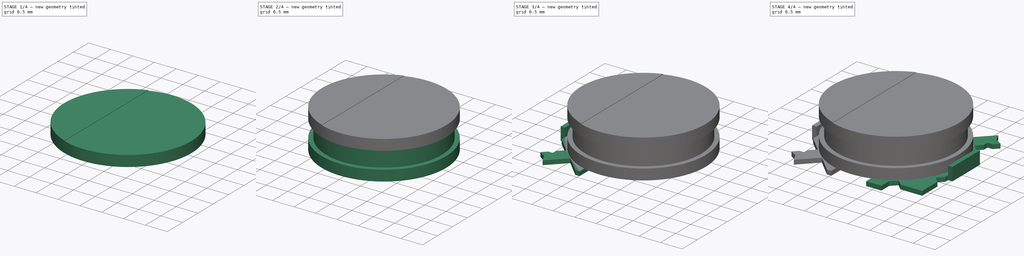
[diagram: build sequence overview — one tinted view per stage of 4, left to right]
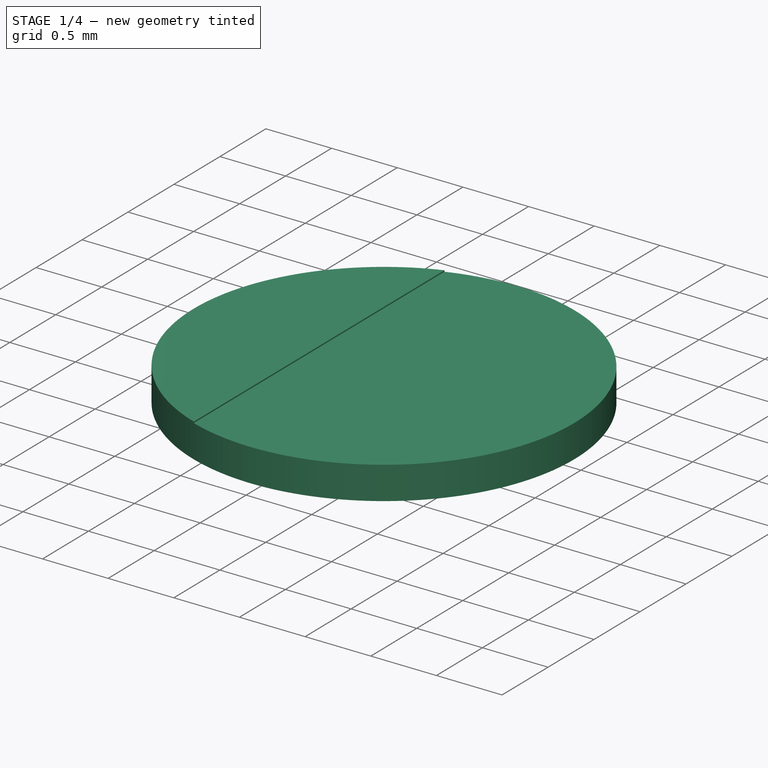
[diagram: stage 1 of 4 — iso view after this stage's code; geometry added in this stage tinted green]
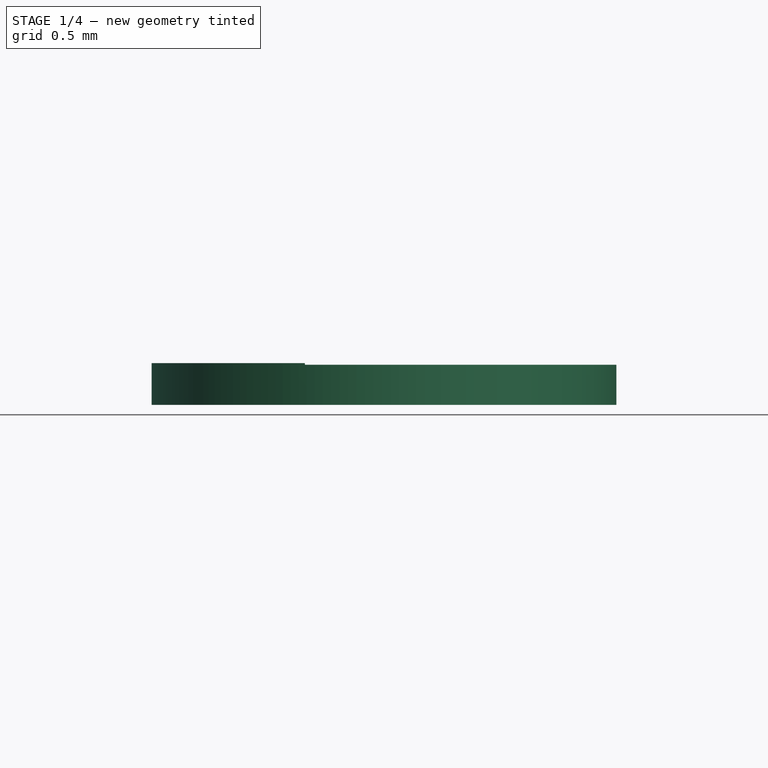
[diagram: stage 1 of 4 — front view after this stage's code; geometry added in this stage tinted green]
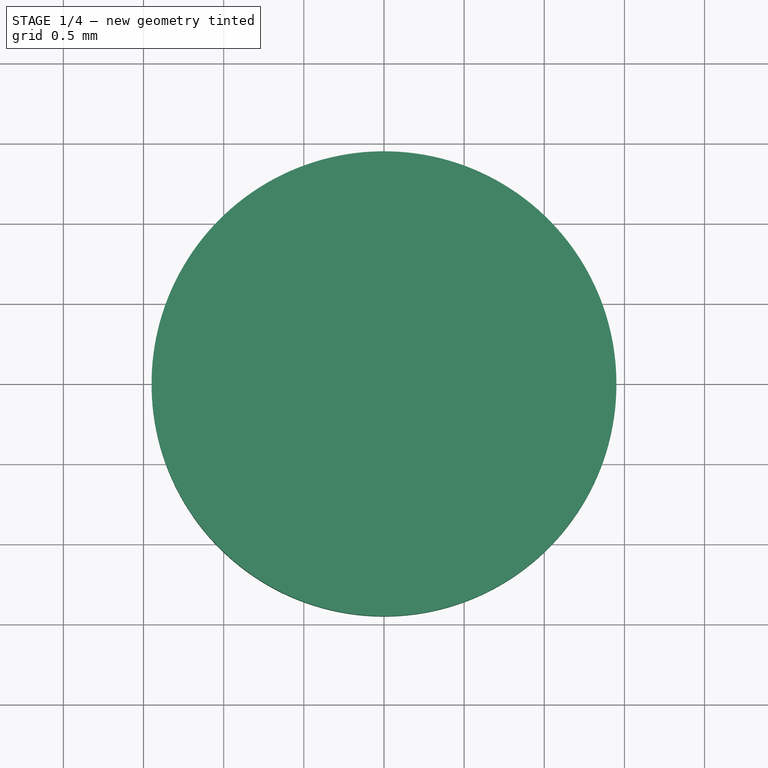
[diagram: stage 1 of 4 — top view after this stage's code; geometry added in this stage tinted green]
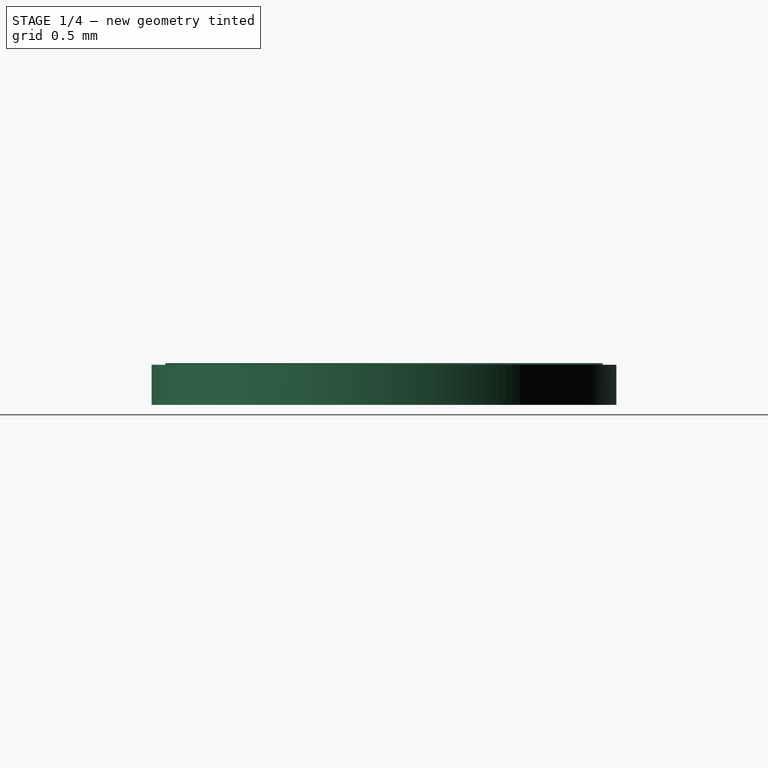
[diagram: stage 1 of 4 — right view after this stage's code; geometry added in this stage tinted green]
FCSTD DOCUMENT  (FreeCAD 0.16R6114 (Git))
Label: Ind_ell_vfg
License: All rights reserved
LicenseURL: http://en.wikipedia.org/wiki/All_rights_reserved
objects: Sketcher::SketchObject×7, PartDesign::Pad×7, Part::Mirroring×1, Part::MultiFuse×1
note: 23 computed .brp shape members not serialized (recipe doc carries the construction recipe); baked Part::Feature solids carry a one-line shape summary decoded from their .brp

FEATURE [Sketcher::SketchObject] Sketch005
  Placement = pos=(0,0,0.75) rot=(0,0,1;0rad)
  sketch-geometry (1):
    g0: Circle CenterX=0 CenterY=0 CenterZ=0 NormalX=0 NormalY=0 NormalZ=1 Radius=1.45
  constraints (2):
    c: Coincident(g0,g-1)
    c: Radius(g0) = 1.45
FEATURE [PartDesign::Pad] Pad005
  Length = 0.25
  Length2 = 100
  Placement = pos=(0,0,0.75) rot=(0,0,1;0rad)
  Sketch = -> Sketch005
  Type = 0
FEATURE [Sketcher::SketchObject] Sketch006
  Placement = pos=(0,0,1.01) rot=(0,0,1;0rad)
  sketch-geometry (2):
    g0: ArcOfCircle CenterX=0 CenterY=0 CenterZ=0 NormalX=0 NormalY=0 NormalZ=1 Radius=1.45 StartAngle=1.91827 EndAngle=4.36491
    g1: LineSegment StartX=-0.49376 StartY=1.36334 StartZ=0 EndX=-0.49376 EndY=-1.36334 EndZ=0
  constraints (6):
    c: Coincident(g0,g-1)
    c: Radius(g0) = 1.45
    c: Vertical(g1)
    c: Coincident(g1,g0)
    c: Coincident(g1,g0)
    c: DistanceX(g-1,g0) = -0.49376
FEATURE [PartDesign::Pad] Pad006
  Length = 0.01
  Length2 = 100
  Placement = pos=(0,0,1.01) rot=(0,0,1;0rad)
  Reversed = true
  Sketch = -> Sketch006
  Type = 0
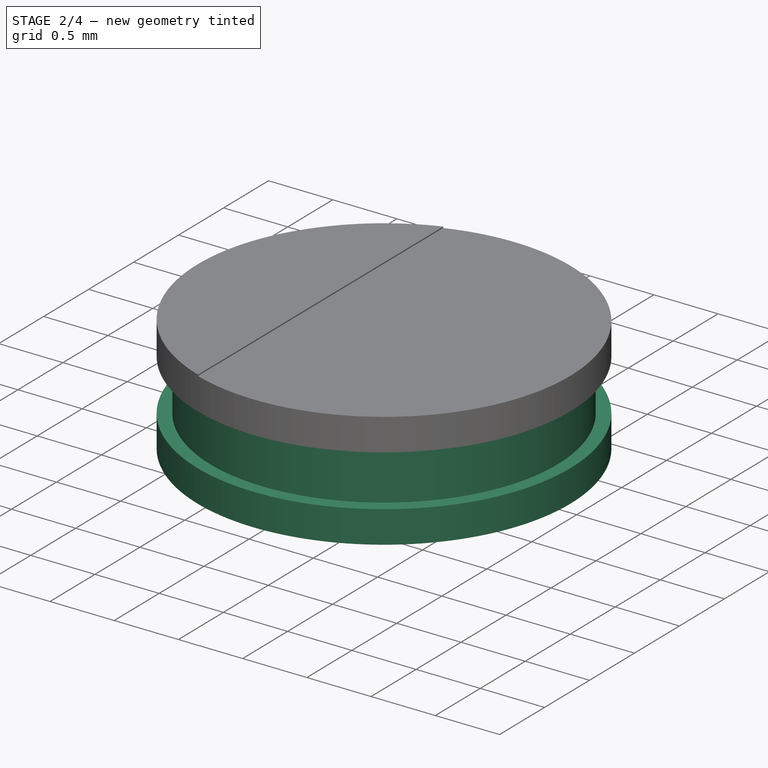
[diagram: stage 2 of 4 — iso view after this stage's code; geometry added in this stage tinted green]
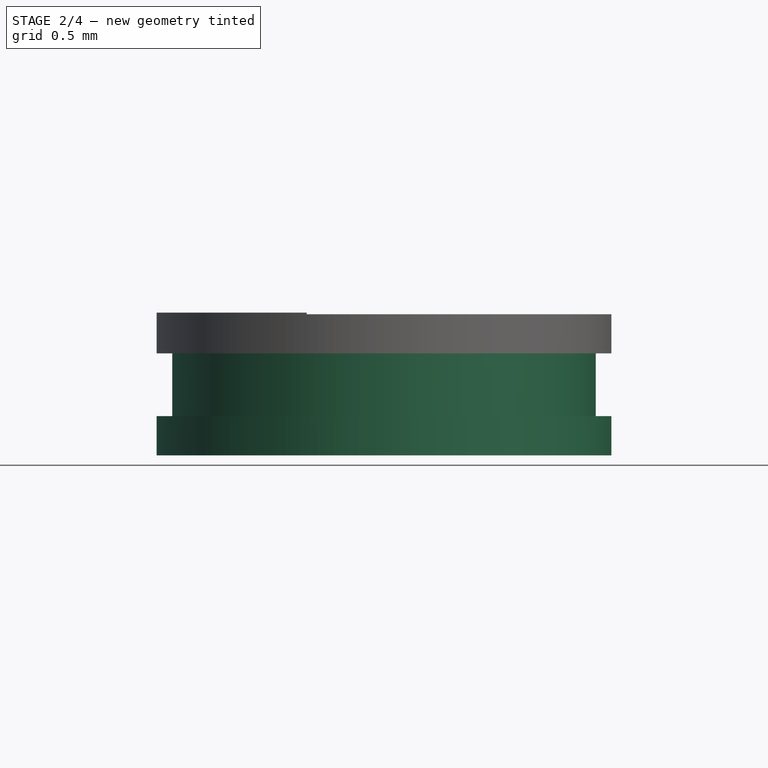
[diagram: stage 2 of 4 — front view after this stage's code; geometry added in this stage tinted green]
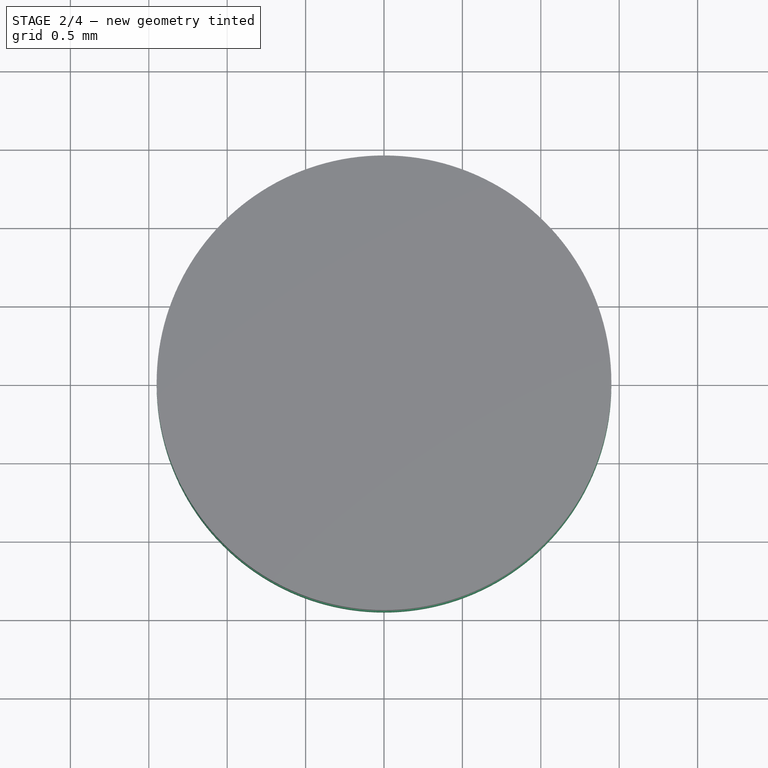
[diagram: stage 2 of 4 — top view after this stage's code; geometry added in this stage tinted green]
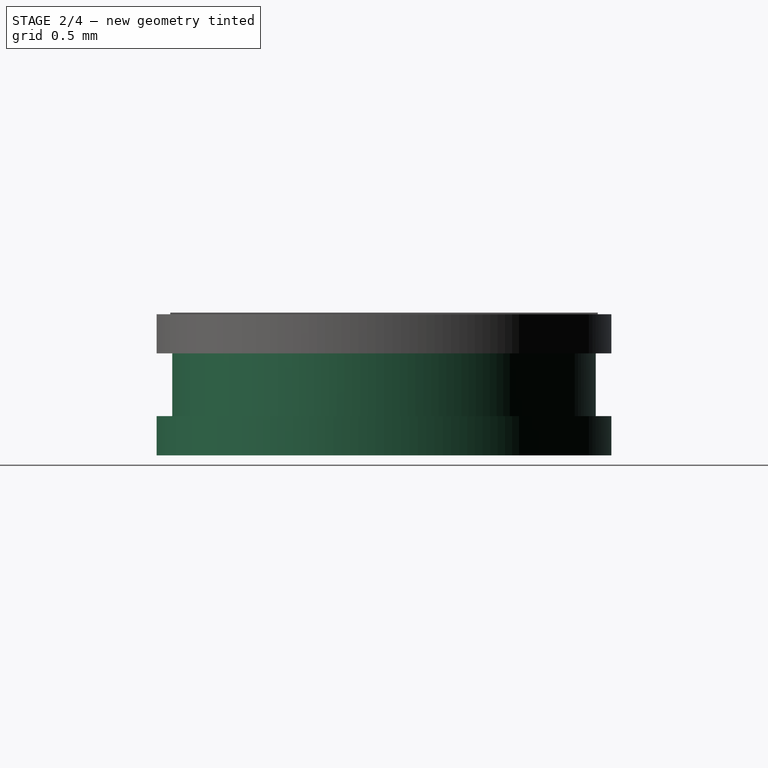
[diagram: stage 2 of 4 — right view after this stage's code; geometry added in this stage tinted green]
FEATURE [Sketcher::SketchObject] Sketch003
  Placement = pos=(0,0,0.1) rot=(0,0,1;0rad)
  sketch-geometry (1):
    g0: Circle CenterX=0 CenterY=0 CenterZ=0 NormalX=0 NormalY=0 NormalZ=1 Radius=1.45
  constraints (2):
    c: Coincident(g0,g-1)
    c: Radius(g0) = 1.45
FEATURE [PartDesign::Pad] Pad003
  Length = 0.25
  Length2 = 100
  Placement = pos=(0,0,0.1) rot=(0,0,1;0rad)
  Sketch = -> Sketch003
  Type = 0
FEATURE [Sketcher::SketchObject] Sketch004
  Placement = pos=(0,0,0.35) rot=(0,0,1;0rad)
  sketch-geometry (1):
    g0: Circle CenterX=0 CenterY=0 CenterZ=0 NormalX=0 NormalY=0 NormalZ=1 Radius=1.35
  constraints (2):
    c: Coincident(g0,g-1)
    c: Radius(g0) = 1.35
FEATURE [PartDesign::Pad] Pad004
  Length = 0.4
  Length2 = 100
  Placement = pos=(0,0,0.35) rot=(0,0,1;0rad)
  Sketch = -> Sketch004
  Type = 0
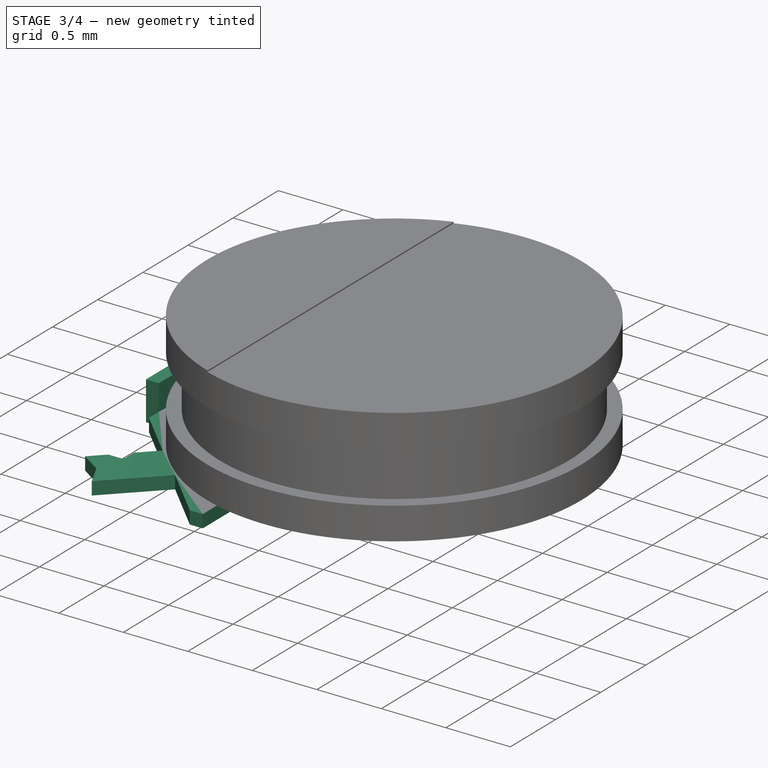
[diagram: stage 3 of 4 — iso view after this stage's code; geometry added in this stage tinted green]
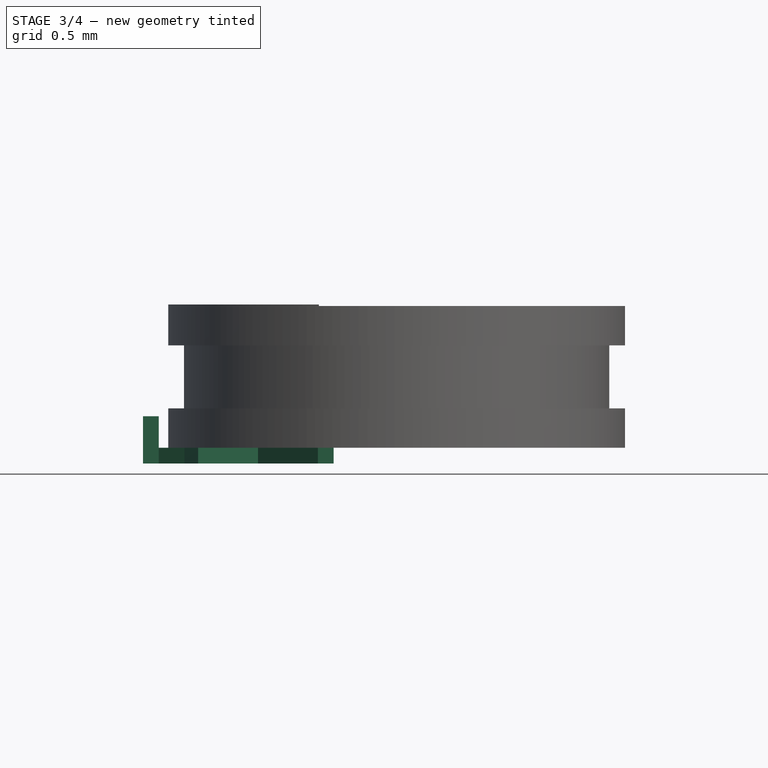
[diagram: stage 3 of 4 — front view after this stage's code; geometry added in this stage tinted green]
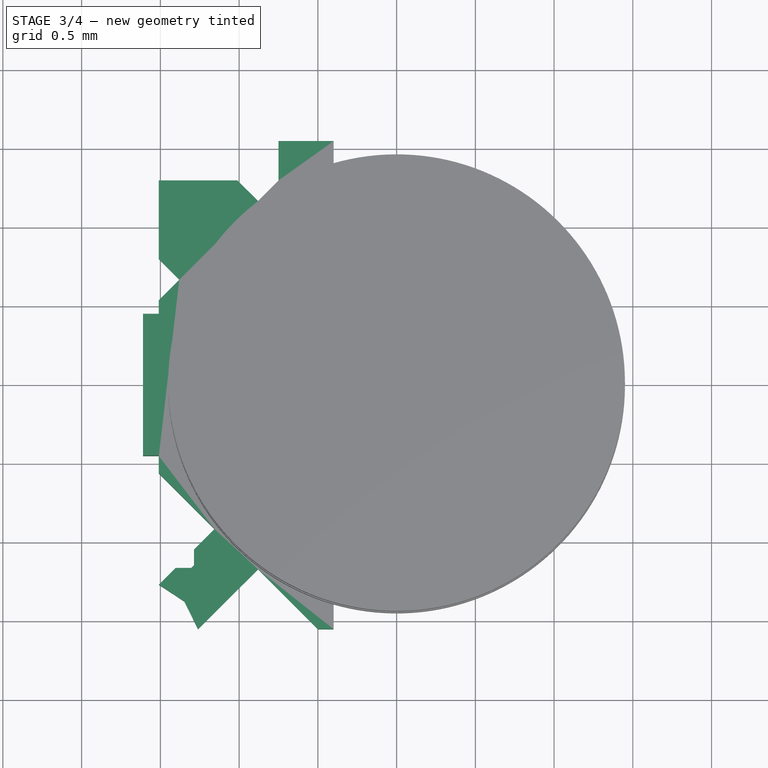
[diagram: stage 3 of 4 — top view after this stage's code; geometry added in this stage tinted green]
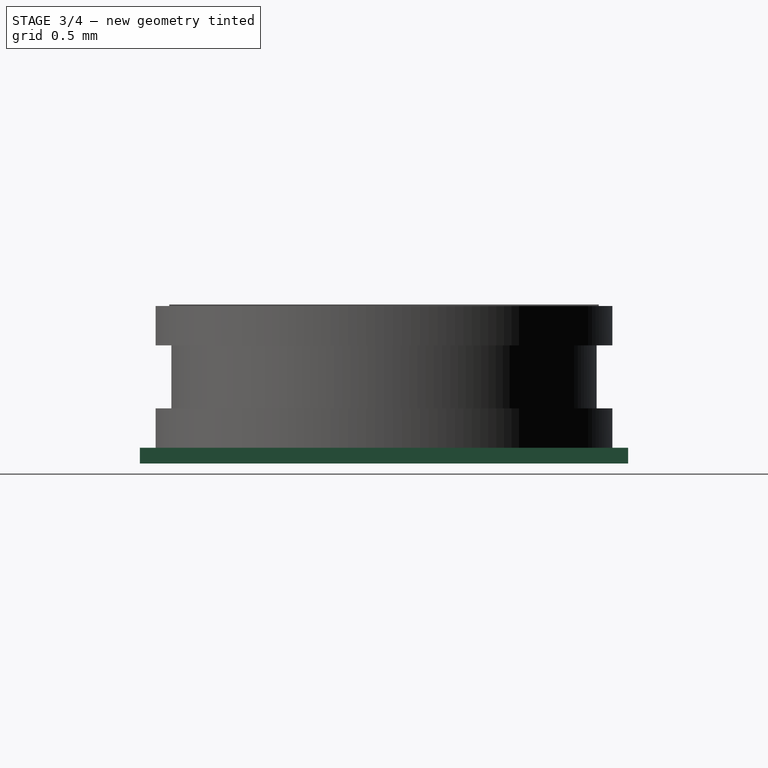
[diagram: stage 3 of 4 — right view after this stage's code; geometry added in this stage tinted green]
FEATURE [Sketcher::SketchObject] Sketch
  sketch-geometry (25):
    g0: LineSegment StartX=0.4 StartY=-1.55 StartZ=0 EndX=0.75 EndY=-1.55 EndZ=0
    g1: LineSegment StartX=0.75 StartY=-1.55 StartZ=0 EndX=0.75 EndY=-1.3 EndZ=0
    g2: LineSegment StartX=0.75 StartY=-1.3 StartZ=0 EndX=0.88 EndY=-1.17 EndZ=0
    g3: LineSegment StartX=0.88 StartY=-1.17 StartZ=0 EndX=1.01 EndY=-1.3 EndZ=0
    g4: LineSegment StartX=1.01 StartY=-1.3 StartZ=0 EndX=1.51 EndY=-1.3 EndZ=0
    g5: LineSegment StartX=1.51 StartY=-1.3 StartZ=0 EndX=1.51 EndY=-0.8 EndZ=0
    g6: LineSegment StartX=1.51 StartY=-0.8 StartZ=0 EndX=1.38 EndY=-0.67 EndZ=0
    g7: LineSegment StartX=1.38 StartY=-0.67 StartZ=0 EndX=1.51 EndY=-0.54 EndZ=0
    g8: LineSegment StartX=1.51 StartY=-0.54 StartZ=0 EndX=1.51 EndY=-0.45 EndZ=0
    g9: LineSegment StartX=1.51 StartY=-0.45 StartZ=0 EndX=1.61 EndY=-0.45 EndZ=0
    g10: LineSegment StartX=1.61 StartY=-0.45 StartZ=0 EndX=1.61 EndY=0.45 EndZ=0
    g11: LineSegment StartX=1.61 StartY=0.45 StartZ=0 EndX=1.51 EndY=0.45 EndZ=0
    g12: LineSegment StartX=1.51 StartY=0.45 StartZ=0 EndX=1.51 EndY=0.56 EndZ=0
    g13: LineSegment StartX=1.51 StartY=0.56 StartZ=0 EndX=1.15645 EndY=0.913553 EndZ=0
    g14: LineSegment StartX=1.15645 StartY=0.913553 StartZ=0 EndX=1.28626 EndY=1.04336 EndZ=0
    g15: LineSegment StartX=1.28626 StartY=1.04336 StartZ=0 EndX=1.28626 EndY=1.14336 EndZ=0
    g16: LineSegment StartX=1.28626 StartY=1.14336 StartZ=0 EndX=1.30393 EndY=1.16104 EndZ=0
    g17: LineSegment StartX=1.30393 StartY=1.16104 StartZ=0 EndX=1.40393 EndY=1.16104 EndZ=0
    g18: LineSegment StartX=1.40393 StartY=1.16104 StartZ=0 EndX=1.51 EndY=1.26711 EndZ=0
    g19: LineSegment StartX=1.51 StartY=1.26711 StartZ=0 EndX=1.3471 EndY=1.37506 EndZ=0
    g20: LineSegment StartX=1.3471 StartY=1.37506 StartZ=0 EndX=1.26 EndY=1.55 EndZ=0
    g21: LineSegment StartX=1.26 StartY=1.55 StartZ=0 EndX=0.88 EndY=1.17 EndZ=0
    g22: LineSegment StartX=0.88 StartY=1.17 StartZ=0 EndX=0.5 EndY=1.55 EndZ=0
    g23: LineSegment StartX=0.5 StartY=1.55 StartZ=0 EndX=0.4 EndY=1.55 EndZ=0
    g24: LineSegment StartX=0.4 StartY=1.55 StartZ=0 EndX=0.4 EndY=-1.55 EndZ=0
  constraints (75):
    c: Horizontal(g0)
    c: Coincident(g0,g1)
    c: Vertical(g1)
    c: Coincident(g1,g2)
    c: Coincident(g2,g3)
    c: Coincident(g3,g4)
    c: Horizontal(g4)
    c: Coincident(g4,g5)
    c: Coincident(g5,g6)
    c: Coincident(g6,g7)
    c: Coincident(g7,g8)
    c: Vertical(g8)
    c: Coincident(g8,g9)
    c: Horizontal(g9)
    c: Coincident(g9,g10)
    c: Vertical(g10)
    c: Coincident(g10,g11)
    c: Horizontal(g11)
    c: Coincident(g11,g12)
    c: Vertical(g12)
    c: Coincident(g12,g13)
    c: Coincident(g13,g14)
    c: Coincident(g14,g15)
    c: Vertical(g15)
    c: Coincident(g15,g16)
    c: Coincident(g16,g17)
    c: Horizontal(g17)
    c: Coincident(g17,g18)
    c: Coincident(g18,g19)
    c: Coincident(g19,g20)
    c: Coincident(g20,g21)
    c: Coincident(g21,g22)
    c: Coincident(g22,g23)
    c: Horizontal(g23)
    c: Angle(g2,g3) = 1.5708
    c: Angle(g6,g7) = 1.5708
    c: Angle(g5) = 1.5708
    c: Angle(g21,g22) = 1.5708
    c: DistanceX(g0) = 0.35
    c: DistanceY(g1) = 0.25
    c: DistanceX(g4) = 0.5
    c: DistanceY(g5) = 0.5
    c: DistanceX(g9) = 0.1
    c: DistanceY(g10) = 0.9
    c: DistanceX(g11) = -0.1
    c: DistanceY(g12) = 0.11
    c: Angle(g13,g14) = 1.5708
    c: Angle(g13,g18) = 1.5708
    c: DistanceY(g15) = 0.1
    c: DistanceX(g17) = 0.1
    c: DistanceX(g23) = -0.1
    c: DistanceY(g22,g20) = 0
    c: DistanceY(g1,g3) = 0
    c: DistanceX(g7,g5) = 0
    c: DistanceX(g12,g18) = 0
    c: DistanceY(g2,g1) = -0.13
    c: DistanceX(g6,g5) = 0.13
    c: DistanceY(g22,g21) = -0.38
    c: Angle(g13) = 2.35619
    c: Angle(g22) = 2.35619
    c: Angle(g2) = 0.785398
    c: Angle(g6) = 2.35619
    c: DistanceX(g-1,g23) = 0.4
    c: Angle(g19,g20) = 2.61799
    c: Equal(g20,g19)
    c: Angle(g16) = 0.785398
    c: Distance(g18) = 0.15
    c: Distance(g16) = 0.025
    c: Distance(g13) = 0.5
    c: Vertical(g24)
    c: Coincident(g24,g23)
    c: Coincident(g24,g0)
    c: Symmetric(g23,g0,g-1)
    c: DistanceY(g-1,g10) = 0.45
    c: DistanceY(g8) = 0.09
FEATURE [PartDesign::Pad] Pad
  Length = 0.1
  Length2 = 100
  Sketch = -> Sketch
  Type = 0
FEATURE [Part::Mirroring] Part__Mirroring  label="Pad (Mirror #1)"
  Base = (0,0,0)
  Normal = (1,0,0)
  Placement = pos=(0,0,0.1) rot=(1,0,0;3.14159rad)
  Source = -> Pad
FEATURE [Sketcher::SketchObject] Sketch002
  ExternalGeometry = -> [Part__Mirroring]
  Placement = pos=(0,0,0.1) rot=(0,0,1;0rad)
  Support = -> Part__Mirroring [Face26]
  sketch-geometry (4):
    g0: LineSegment StartX=-1.61 StartY=0.45 StartZ=0 EndX=-1.51 EndY=0.45 EndZ=0
    g1: LineSegment StartX=-1.51 StartY=0.45 StartZ=0 EndX=-1.51 EndY=-0.45 EndZ=0
    g2: LineSegment StartX=-1.51 StartY=-0.45 StartZ=0 EndX=-1.61 EndY=-0.45 EndZ=0
    g3: LineSegment StartX=-1.61 StartY=-0.45 StartZ=0 EndX=-1.61 EndY=0.45 EndZ=0
  constraints (11):
    c: Coincident(g0,g1)
    c: Coincident(g1,g2)
    c: Coincident(g2,g3)
    c: Coincident(g3,g0)
    c: Horizontal(g0)
    c: Horizontal(g2)
    c: Vertical(g1)
    c: Vertical(g3)
    c: Equal(g2,g-6)
    c: Equal(g3,g-5)
    c: Coincident(g0,g-4)
FEATURE [PartDesign::Pad] Pad002
  Length = 0.2
  Length2 = 100
  Placement = pos=(0,0,0.1) rot=(1,0,0;3.14159rad)
  Sketch = -> Sketch002
  Type = 0
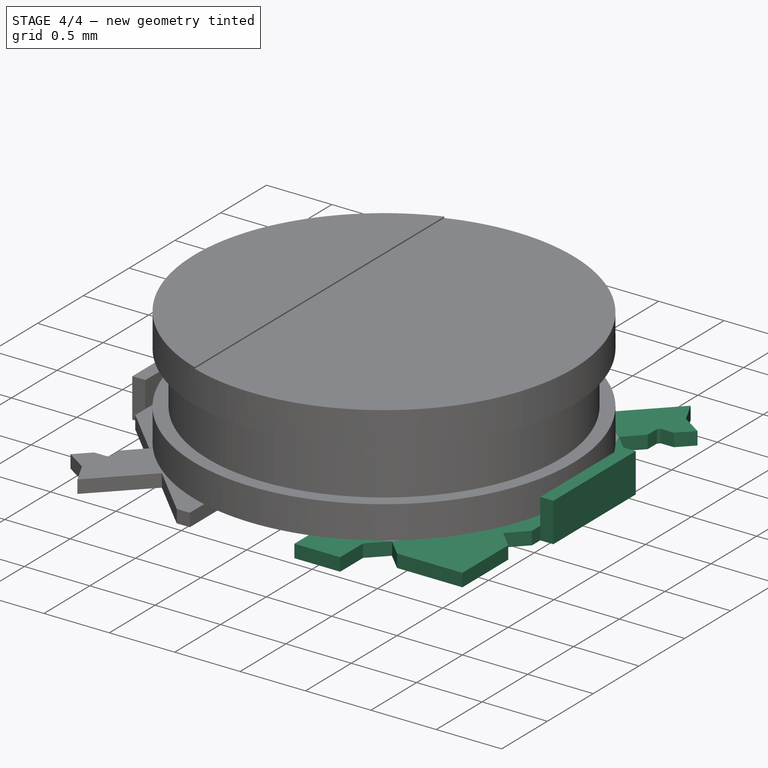
[diagram: stage 4 of 4 — iso view after this stage's code; geometry added in this stage tinted green]
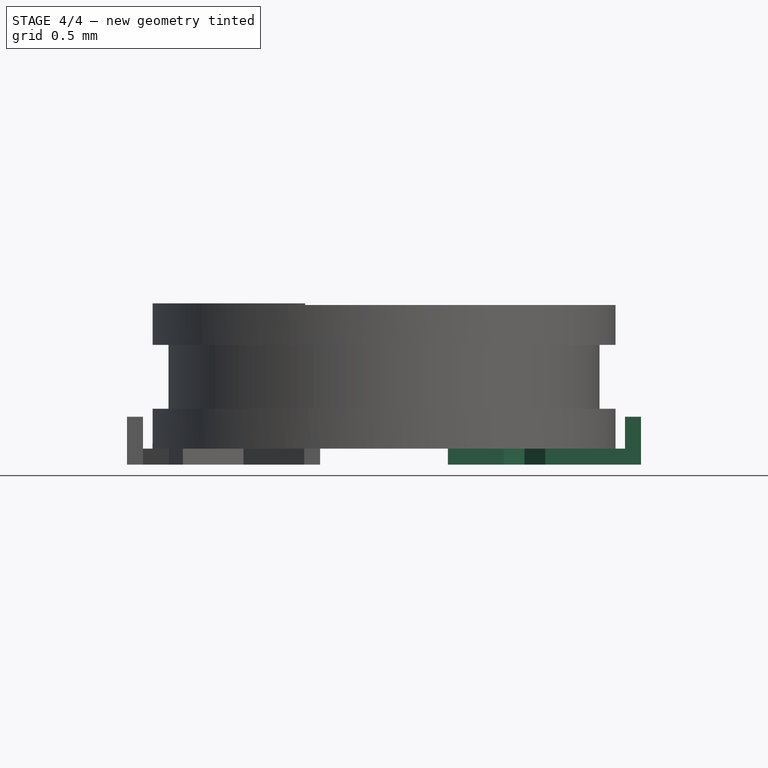
[diagram: stage 4 of 4 — front view after this stage's code; geometry added in this stage tinted green]
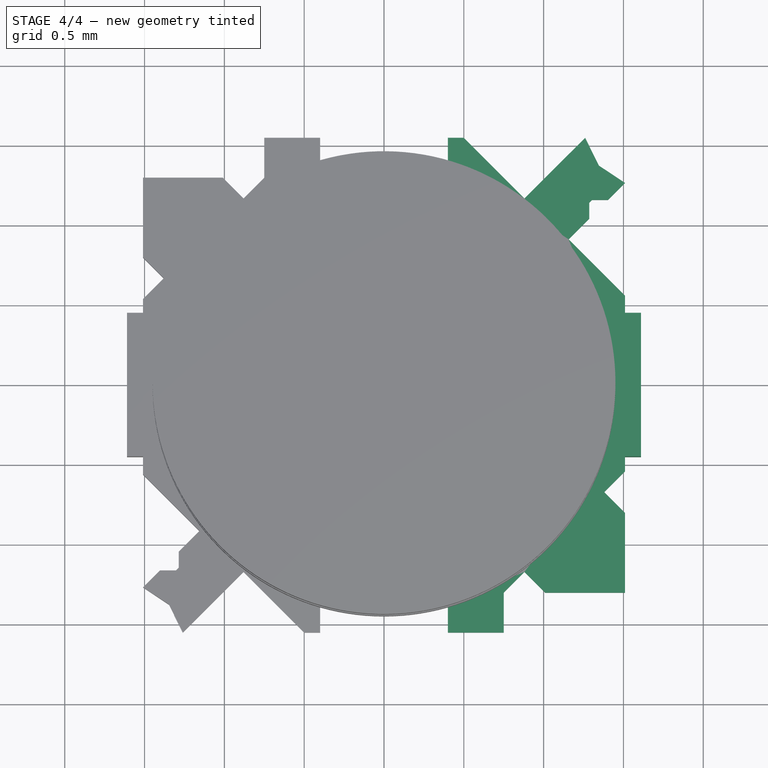
[diagram: stage 4 of 4 — top view after this stage's code; geometry added in this stage tinted green]
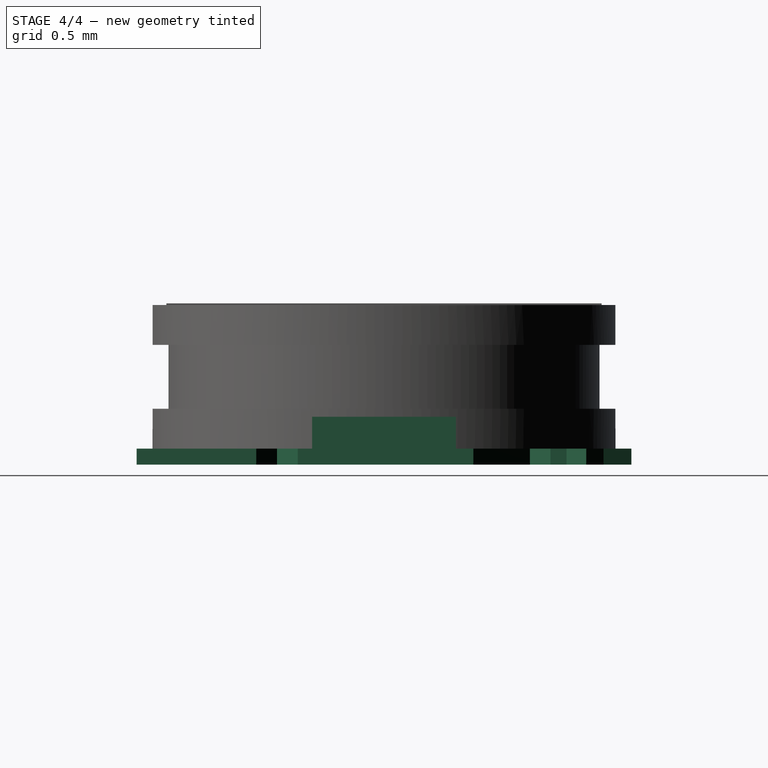
[diagram: stage 4 of 4 — right view after this stage's code; geometry added in this stage tinted green]
FEATURE [Sketcher::SketchObject] Sketch001
  ExternalGeometry = -> [Pad]
  Placement = pos=(0,0,0.1) rot=(0,0,1;0rad)
  Support = -> Pad [Face27]
  sketch-geometry (4):
    g0: LineSegment StartX=1.51 StartY=0.45 StartZ=0 EndX=1.61 EndY=0.45 EndZ=0
    g1: LineSegment StartX=1.61 StartY=0.45 StartZ=0 EndX=1.61 EndY=-0.45 EndZ=0
    g2: LineSegment StartX=1.61 StartY=-0.45 StartZ=0 EndX=1.51 EndY=-0.45 EndZ=0
    g3: LineSegment StartX=1.51 StartY=-0.45 StartZ=0 EndX=1.51 EndY=0.45 EndZ=0
  constraints (11):
    c: Coincident(g0,g1)
    c: Coincident(g1,g2)
    c: Coincident(g2,g3)
    c: Coincident(g3,g0)
    c: Horizontal(g0)
    c: Horizontal(g2)
    c: Vertical(g1)
    c: Vertical(g3)
    c: Equal(g-4,g2)
    c: Equal(g1,g-5)
    c: Coincident(g2,g-4)
FEATURE [PartDesign::Pad] Pad001
  Length = 0.2
  Length2 = 100
  Sketch = -> Sketch001
  Type = 0
FEATURE [Part::MultiFuse] Fusion  label="Ind_ell_vfg"
  Shapes = -> [Pad001,Pad006,Pad002,Pad004,Pad005,Pad003]
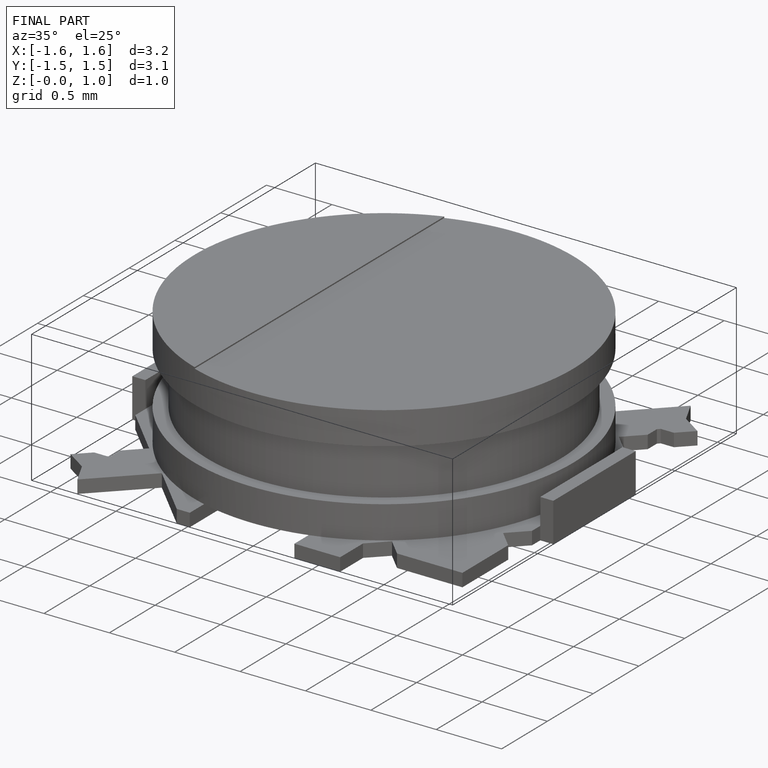
[diagram: finished part — iso view with bounding-box wireframe]
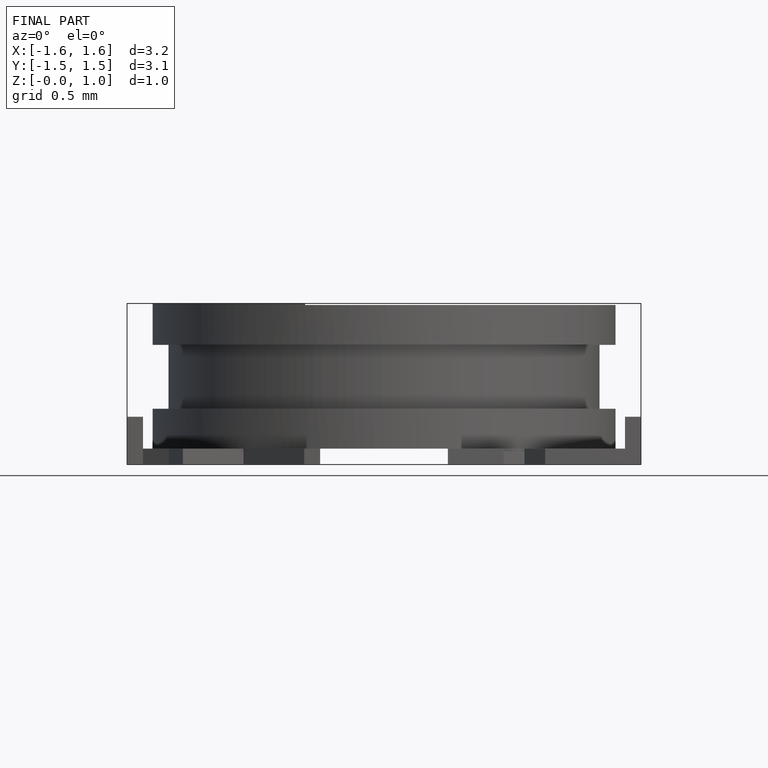
[diagram: finished part — front view with bounding-box wireframe]
